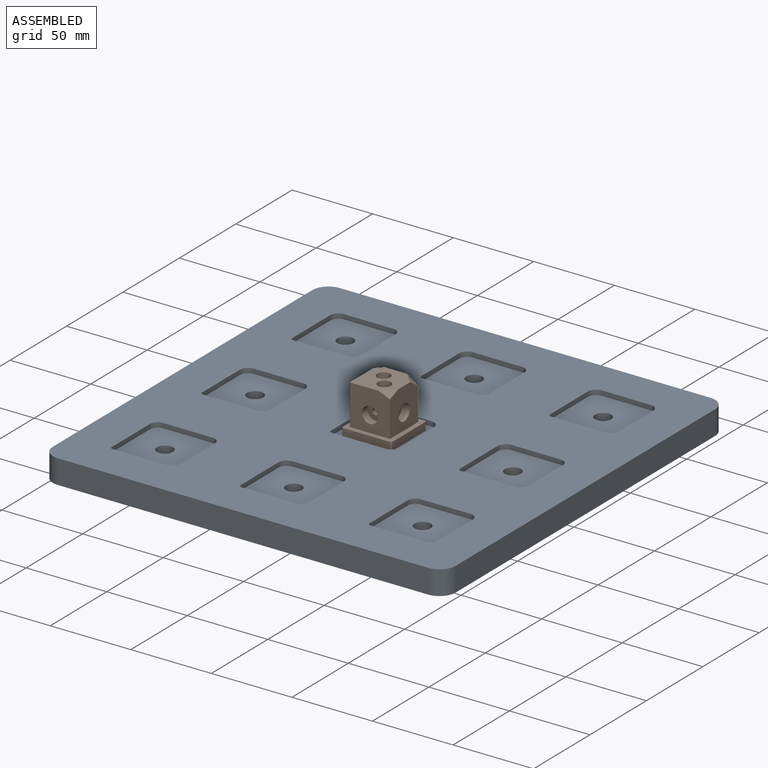
[diagram: assembled view]
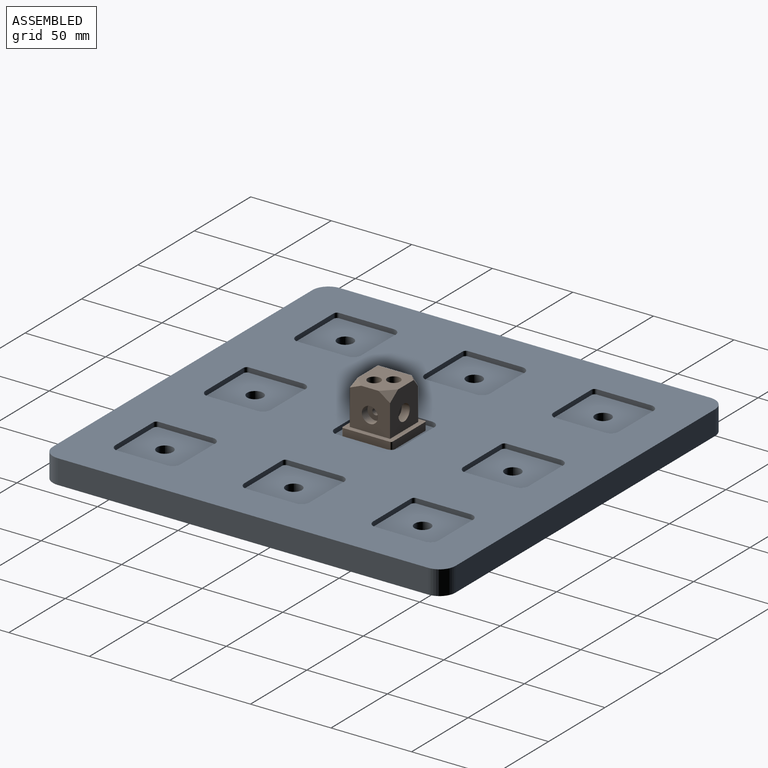
[diagram: assembled view, second angle]
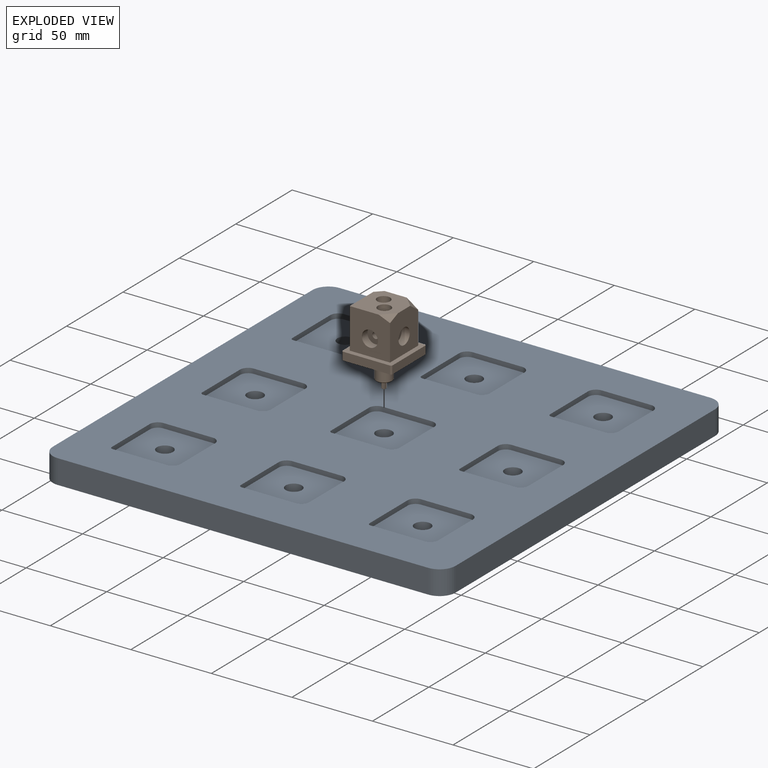
[diagram: exploded view]
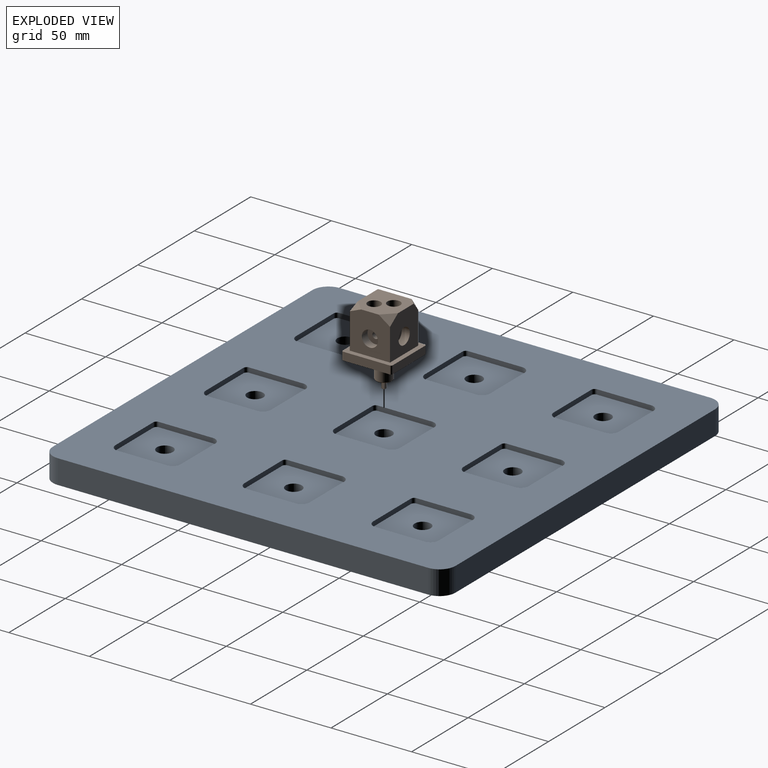
[diagram: exploded view, second angle]
ASSEMBLY  parts=2 mates=2
PART A: 100 faces, bbox 250x250x15 mm
  f0: cylinder r=5mm len=12mm, axis (0,0,1), area 377mm2, adj f18,f54
  f1: cylinder r=5mm len=12mm, axis (0,0,1), area 377mm2, adj f18,f72
  f2: cylinder r=5mm len=12mm, axis (0,0,1), area 377mm2, adj f18,f90
  f3: cylinder r=5mm len=12mm, axis (0,0,1), area 377mm2, adj f18,f27
  f4: cylinder r=5mm len=12mm, axis (0,0,1), area 377mm2, adj f18,f99
  f5: cylinder r=5mm len=12mm, axis (0,0,1), area 377mm2, adj f18,f63
  f6: cylinder r=5mm len=12mm, axis (0,0,1), area 377mm2, adj f18,f81
  f7: cylinder r=5mm len=12mm, axis (0,0,1), area 377mm2, adj f18,f45
  f8: cylinder r=5mm len=12mm, axis (0,0,1), area 377mm2, adj f18,f36
  f9: plane 250x250mm, normal (0,0,1), area 47804.5mm2, adj f10,f11,f12,f13,f14,f15,f16,f17
  f10: plane 230x15mm, normal (1,0,0), area 3450mm2, adj f9,f11,f17,f18
  f11: cylinder r=10mm len=15mm, axis (0,0,1), area 235.6mm2, adj f9,f10,f12,f18
  f12: plane 230x15mm, normal (0,1,0), area 3450mm2, adj f9,f11,f13,f18
  f13: cylinder r=10mm len=15mm, axis (0,0,1), area 235.6mm2, adj f9,f12,f14,f18
  f14: plane 230x15mm, normal (-1,0,0), area 3450mm2, adj f9,f13,f15,f18
  f15: cylinder r=10mm len=15mm, axis (0,0,1), area 235.6mm2, adj f9,f14,f16,f18
  f16: plane 230x15mm, normal (0,-1,0), area 3450mm2, adj f9,f15,f17,f18
  f17: cylinder r=10mm len=15mm, axis (0,0,1), area 235.6mm2, adj f9,f10,f16,f18
  f18: plane 250x250mm, normal (0,0,-1), area 61707.3mm2, adj f0,f1,f2,f3,f4,f5,f6,f7
  f19: plane 30.5x3mm, normal (0,-1,0), area 91.5mm2, adj f9,f20,f26,f27
  f20: cylinder r=5mm len=5mm, axis (0,0,1), area 23.6mm2, adj f9,f19,f21,f27
  f21: plane 33.5x3mm, normal (1,0,0), area 100.5mm2, adj f9,f20,f22,f27
  f22: cylinder r=2mm len=3mm, axis (0,0,1), area 9.4mm2, adj f9,f21,f23,f27
  f23: plane 33.5x3mm, normal (0,1,0), area 100.5mm2, adj f9,f22,f24,f27
  f24: cylinder r=5mm len=5mm, axis (0,0,1), area 23.6mm2, adj f9,f23,f25,f27
  f25: plane 30.5x3mm, normal (-1,0,0), area 91.5mm2, adj f9,f24,f26,f27
  f26: cylinder r=5mm len=5mm, axis (0,0,1), area 23.6mm2, adj f9,f19,f25,f27
  f27: plane 40.5x40.5mm, normal (0,0,1), area 1544.8mm2, adj f3,f19,f20,f21,f22,f23,f24,f25
  f28: plane 30.5x3mm, normal (0,-1,0), area 91.5mm2, adj f9,f29,f35,f36
  f29: cylinder r=5mm len=5mm, axis (0,0,1), area 23.6mm2, adj f9,f28,f30,f36
  f30: plane 33.5x3mm, normal (1,0,0), area 100.5mm2, adj f9,f29,f31,f36
  f31: cylinder r=2mm len=3mm, axis (0,0,1), area 9.4mm2, adj f9,f30,f32,f36
  f32: plane 33.5x3mm, normal (0,1,0), area 100.5mm2, adj f9,f31,f33,f36
  f33: cylinder r=5mm len=5mm, axis (0,0,1), area 23.6mm2, adj f9,f32,f34,f36
  f34: plane 30.5x3mm, normal (-1,0,0), area 91.5mm2, adj f9,f33,f35,f36
  f35: cylinder r=5mm len=5mm, axis (0,0,1), area 23.6mm2, adj f9,f28,f34,f36
  f36: plane 40.5x40.5mm, normal (0,0,1), area 1544.8mm2, adj f8,f28,f29,f30,f31,f32,f33,f34
  f37: plane 30.5x3mm, normal (0,-1,0), area 91.5mm2, adj f9,f38,f44,f45
  f38: cylinder r=5mm len=5mm, axis (0,0,1), area 23.6mm2, adj f9,f37,f39,f45
  f39: plane 33.5x3mm, normal (1,0,0), area 100.5mm2, adj f9,f38,f40,f45
  f40: cylinder r=2mm len=3mm, axis (0,0,1), area 9.4mm2, adj f9,f39,f41,f45
  f41: plane 33.5x3mm, normal (0,1,0), area 100.5mm2, adj f9,f40,f42,f45
  f42: cylinder r=5mm len=5mm, axis (0,0,1), area 23.6mm2, adj f9,f41,f43,f45
  f43: plane 30.5x3mm, normal (-1,0,0), area 91.5mm2, adj f9,f42,f44,f45
  f44: cylinder r=5mm len=5mm, axis (0,0,1), area 23.6mm2, adj f9,f37,f43,f45
  f45: plane 40.5x40.5mm, normal (0,0,1), area 1544.8mm2, adj f7,f37,f38,f39,f40,f41,f42,f43
  f46: plane 30.5x3mm, normal (0,-1,0), area 91.5mm2, adj f9,f47,f53,f54
  f47: cylinder r=5mm len=5mm, axis (0,0,1), area 23.6mm2, adj f9,f46,f48,f54
  f48: plane 33.5x3mm, normal (1,0,0), area 100.5mm2, adj f9,f47,f49,f54
  f49: cylinder r=2mm len=3mm, axis (0,0,1), area 9.4mm2, adj f9,f48,f50,f54
  f50: plane 33.5x3mm, normal (0,1,0), area 100.5mm2, adj f9,f49,f51,f54
  f51: cylinder r=5mm len=5mm, axis (0,0,1), area 23.6mm2, adj f9,f50,f52,f54
  f52: plane 30.5x3mm, normal (-1,0,0), area 91.5mm2, adj f9,f51,f53,f54
  f53: cylinder r=5mm len=5mm, axis (0,0,1), area 23.6mm2, adj f9,f46,f52,f54
  f54: plane 40.5x40.5mm, normal (0,0,1), area 1544.8mm2, adj f0,f46,f47,f48,f49,f50,f51,f52
  f55: plane 30.5x3mm, normal (0,-1,0), area 91.5mm2, adj f9,f56,f62,f63
  f56: cylinder r=5mm len=5mm, axis (0,0,1), area 23.6mm2, adj f9,f55,f57,f63
  f57: plane 33.5x3mm, normal (1,0,0), area 100.5mm2, adj f9,f56,f58,f63
  f58: cylinder r=2mm len=3mm, axis (0,0,1), area 9.4mm2, adj f9,f57,f59,f63
  f59: plane 33.5x3mm, normal (0,1,0), area 100.5mm2, adj f9,f58,f60,f63
  f60: cylinder r=5mm len=5mm, axis (0,0,1), area 23.6mm2, adj f9,f59,f61,f63
  f61: plane 30.5x3mm, normal (-1,0,0), area 91.5mm2, adj f9,f60,f62,f63
  f62: cylinder r=5mm len=5mm, axis (0,0,1), area 23.6mm2, adj f9,f55,f61,f63
  f63: plane 40.5x40.5mm, normal (0,0,1), area 1544.8mm2, adj f5,f55,f56,f57,f58,f59,f60,f61
  f64: plane 30.5x3mm, normal (0,-1,0), area 91.5mm2, adj f9,f65,f71,f72
  f65: cylinder r=5mm len=5mm, axis (0,0,1), area 23.6mm2, adj f9,f64,f66,f72
  f66: plane 33.5x3mm, normal (1,0,0), area 100.5mm2, adj f9,f65,f67,f72
  f67: cylinder r=2mm len=3mm, axis (0,0,1), area 9.4mm2, adj f9,f66,f68,f72
  f68: plane 33.5x3mm, normal (0,1,0), area 100.5mm2, adj f9,f67,f69,f72
  f69: cylinder r=5mm len=5mm, axis (0,0,1), area 23.6mm2, adj f9,f68,f70,f72
  f70: plane 30.5x3mm, normal (-1,0,0), area 91.5mm2, adj f9,f69,f71,f72
  f71: cylinder r=5mm len=5mm, axis (0,0,1), area 23.6mm2, adj f9,f64,f70,f72
  f72: plane 40.5x40.5mm, normal (0,0,1), area 1544.8mm2, adj f1,f64,f65,f66,f67,f68,f69,f70
  f73: plane 30.5x3mm, normal (0,-1,0), area 91.5mm2, adj f9,f74,f80,f81
  f74: cylinder r=5mm len=5mm, axis (0,0,1), area 23.6mm2, adj f9,f73,f75,f81
  f75: plane 33.5x3mm, normal (1,0,0), area 100.5mm2, adj f9,f74,f76,f81
  f76: cylinder r=2mm len=3mm, axis (0,0,1), area 9.4mm2, adj f9,f75,f77,f81
  f77: plane 33.5x3mm, normal (0,1,0), area 100.5mm2, adj f9,f76,f78,f81
  f78: cylinder r=5mm len=5mm, axis (0,0,1), area 23.6mm2, adj f9,f77,f79,f81
  f79: plane 30.5x3mm, normal (-1,0,0), area 91.5mm2, adj f9,f78,f80,f81
  f80: cylinder r=5mm len=5mm, axis (0,0,1), area 23.6mm2, adj f9,f73,f79,f81
  f81: plane 40.5x40.5mm, normal (0,0,1), area 1544.8mm2, adj f6,f73,f74,f75,f76,f77,f78,f79
  f82: plane 30.5x3mm, normal (0,-1,0), area 91.5mm2, adj f9,f83,f89,f90
  f83: cylinder r=5mm len=5mm, axis (0,0,1), area 23.6mm2, adj f9,f82,f84,f90
  f84: plane 33.5x3mm, normal (1,0,0), area 100.5mm2, adj f9,f83,f85,f90
  f85: cylinder r=2mm len=3mm, axis (0,0,1), area 9.4mm2, adj f9,f84,f86,f90
  f86: plane 33.5x3mm, normal (0,1,0), area 100.5mm2, adj f9,f85,f87,f90
  f87: cylinder r=5mm len=5mm, axis (0,0,1), area 23.6mm2, adj f9,f86,f88,f90
  f88: plane 30.5x3mm, normal (-1,0,0), area 91.5mm2, adj f9,f87,f89,f90
  f89: cylinder r=5mm len=5mm, axis (0,0,1), area 23.6mm2, adj f9,f82,f88,f90
  f90: plane 40.5x40.5mm, normal (0,0,1), area 1544.8mm2, adj f2,f82,f83,f84,f85,f86,f87,f88
  f91: plane 30.5x3mm, normal (0,-1,0), area 91.5mm2, adj f9,f92,f98,f99
  f92: cylinder r=5mm len=5mm, axis (0,0,1), area 23.6mm2, adj f9,f91,f93,f99
  f93: plane 33.5x3mm, normal (1,0,0), area 100.5mm2, adj f9,f92,f94,f99
  f94: cylinder r=2mm len=3mm, axis (0,0,1), area 9.4mm2, adj f9,f93,f95,f99
  f95: plane 33.5x3mm, normal (0,1,0), area 100.5mm2, adj f9,f94,f96,f99
  f96: cylinder r=5mm len=5mm, axis (0,0,1), area 23.6mm2, adj f9,f95,f97,f99
  f97: plane 30.5x3mm, normal (-1,0,0), area 91.5mm2, adj f9,f96,f98,f99
  f98: cylinder r=5mm len=5mm, axis (0,0,1), area 23.6mm2, adj f9,f91,f97,f99
  f99: plane 40.5x40.5mm, normal (0,0,1), area 1544.8mm2, adj f4,f91,f92,f93,f94,f95,f96,f97
PART B: 50 faces, bbox 31x31x47.5 mm
  f0: plane 31x31mm, normal (0,0,1), area 335.1mm2, adj f2,f3,f4,f5,f33,f34,f35,f36
  f1: plane 25x25mm, normal (0,0,1), area 466.1mm2, adj f2,f3,f4,f5,f6,f10,f14,f15
  f2: plane 25x25mm, normal (-1,0,0), area 518.6mm2, adj f0,f1,f3,f4,f15,f16,f21
  f3: plane 25x25mm, normal (0,-1,0), area 536.3mm2, adj f0,f1,f2,f5,f15,f17
  f4: plane 25x25mm, normal (0,1,0), area 518.6mm2, adj f0,f1,f2,f5,f14,f16,f25
  f5: plane 25x25mm, normal (1,0,0), area 536.3mm2, adj f0,f1,f3,f4,f14,f29
  f6: cylinder r=4mm len=8mm, axis (0,0,1), area 100.5mm2, adj f1,f7
  f7: plane 8x8mm, normal (0,0,1), area 37.7mm2, adj f6,f8
  f8: cylinder r=2mm len=4mm, axis (0,0,1), area 50.3mm2, adj f7,f9
  f9: plane 4x4mm, normal (0,0,1), area 12.6mm2, adj f8
  f10: cylinder r=4mm len=8mm, axis (0,0,1), area 100.5mm2, adj f1,f11
  f11: plane 8x8mm, normal (0,0,1), area 37.7mm2, adj f10,f12
  f12: cylinder r=2mm len=4mm, axis (0,0,1), area 50.3mm2, adj f11,f13
  f13: plane 4x4mm, normal (0,0,1), area 12.6mm2, adj f12
  f14: plane 7.07x7.07mm, normal (0.35,0.35,0.87), area 28.9mm2, adj f1,f4,f5
  f15: plane 5x4.08mm, normal (-0.61,-0.61,0.5), area 16.7mm2, adj f1,f2,f3
  f16: plane 7.07x7.07mm, normal (-0.5,0.5,0.71), area 35.4mm2, adj f1,f2,f4
  f17: cylinder r=5mm len=10mm, axis (0,-1,0), area 157.1mm2, adj f3,f18
  f18: plane 10x10mm, normal (0,-1,0), area 66mm2, adj f17,f19
  f19: cylinder r=2mm len=5mm, axis (0,-1,0), area 62.8mm2, adj f18,f20
  f20: plane 4x4mm, normal (0,-1,0), area 12.6mm2, adj f19
  f21: cylinder r=5mm len=10mm, axis (-1,0,0), area 157.1mm2, adj f2,f22
  f22: plane 10x10mm, normal (-1,0,0), area 66mm2, adj f21,f23
  f23: cylinder r=2mm len=5mm, axis (-1,0,0), area 62.8mm2, adj f22,f24
  f24: plane 4x4mm, normal (-1,0,0), area 12.6mm2, adj f23
  f25: cylinder r=5mm len=10mm, axis (0,1,0), area 157.1mm2, adj f4,f26
  f26: plane 10x10mm, normal (0,1,0), area 66mm2, adj f25,f27
  f27: cylinder r=2mm len=5mm, axis (0,1,0), area 62.8mm2, adj f26,f28
  f28: plane 4x4mm, normal (0,1,0), area 12.6mm2, adj f27
  f29: cylinder r=5mm len=10mm, axis (1,0,0), area 157.1mm2, adj f5,f30
  f30: plane 10x10mm, normal (1,0,0), area 66mm2, adj f29,f31
  f31: cylinder r=2mm len=5mm, axis (1,0,0), area 62.8mm2, adj f30,f32
  f32: plane 4x4mm, normal (1,0,0), area 12.6mm2, adj f31
  f33: cylinder r=1mm len=5mm, axis (0,0,1), area 7.9mm2, adj f0,f34,f40,f49
  f34: plane 29x5mm, normal (1,0,0), area 145mm2, adj f0,f33,f35,f49
  f35: cylinder r=1mm len=5mm, axis (0,0,1), area 7.9mm2, adj f0,f34,f36,f49
  f36: plane 29x5mm, normal (0,-1,0), area 145mm2, adj f0,f35,f37,f49
  f37: cylinder r=1mm len=5mm, axis (0,0,1), area 7.9mm2, adj f0,f36,f38,f49
  f38: plane 29x5mm, normal (-1,0,0), area 145mm2, adj f0,f37,f39,f49
  f39: cylinder r=1mm len=5mm, axis (0,0,1), area 7.9mm2, adj f0,f38,f40,f49
  f40: plane 29x5mm, normal (0,1,0), area 145mm2, adj f0,f33,f39,f49
  f41: plane 2x2mm, normal (0,0,-1), area 4mm2, adj f42,f43,f44,f45
  f42: plane 5x2mm, normal (-1,0,0), area 10mm2, adj f41,f43,f45,f46
  f43: plane 5x2mm, normal (0,1,0), area 10mm2, adj f41,f42,f44,f46
  f44: plane 5x2mm, normal (1,0,0), area 10mm2, adj f41,f43,f45,f46
  f45: plane 5x2mm, normal (0,-1,0), area 10mm2, adj f41,f42,f44,f46
  f46: plane 9x9mm, normal (0,0,-1), area 59.6mm2, adj f42,f43,f44,f45,f47
  f47: cone r=4.5mm half-angle=45deg, axis (0,0,1), area 21.1mm2, adj f46,f48
  f48: cylinder r=5mm len=12mm, axis (0,0,1), area 377mm2, adj f47,f49
  f49: plane 31x31mm, normal (0,0,-1), area 881.6mm2, adj f33,f34,f35,f36,f37,f38,f39,f40
PLACE A rot(axis=(0,0,1),0deg) t=(9.31,-28.13,22.63)mm fixed
PLACE B rot(axis=(0,0,-1),90deg) t=(134.31,96.87,24.63)mm
MATE cylindrical A.f1 <-> B.f47  axis (0,0,1) through (134.31,96.87,19.63)mm
MATE planar A.f72 <-> B.f47  axis (0,0,1) through (134.25,97.07,19.63)mm
